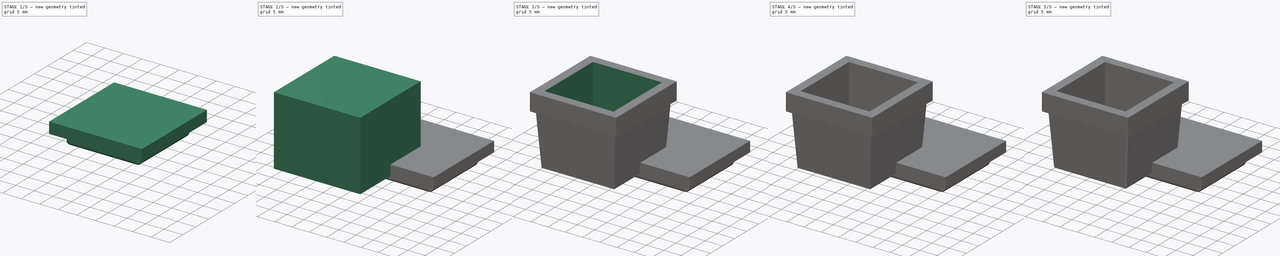
[diagram: build sequence overview — one tinted view per stage of 5, left to right]
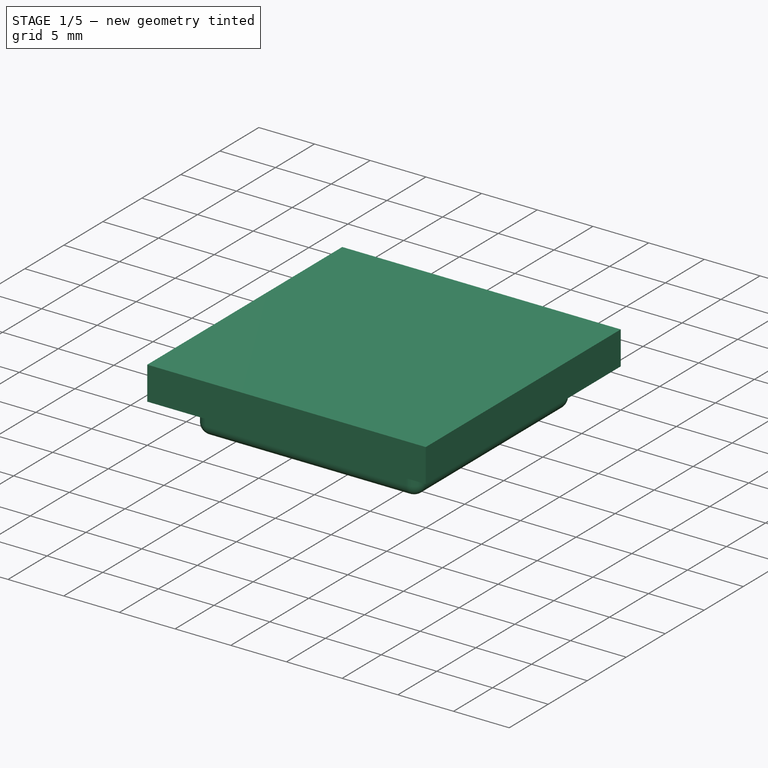
[diagram: stage 1 of 5 — iso view after this stage's code; geometry added in this stage tinted green]
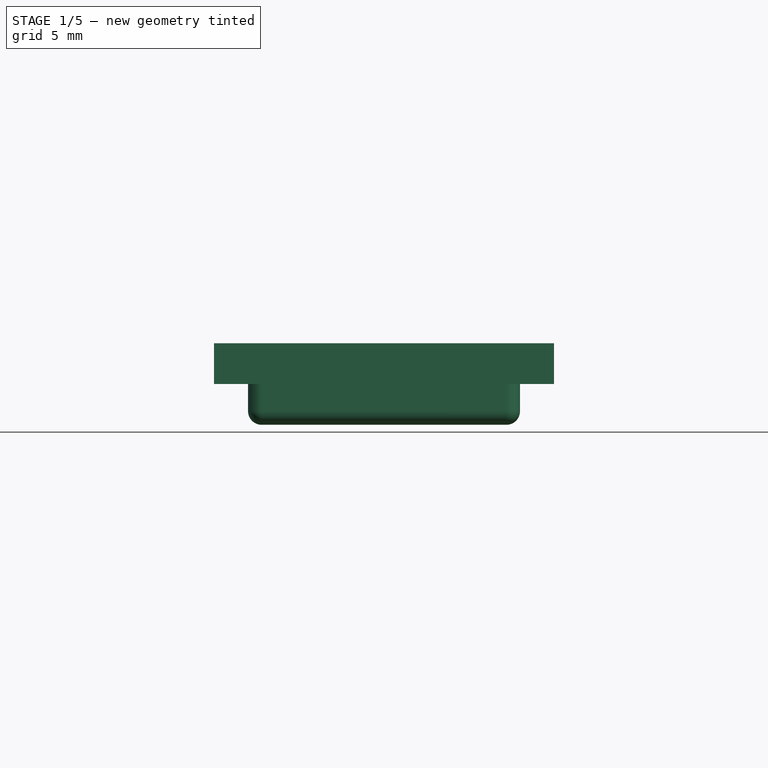
[diagram: stage 1 of 5 — front view after this stage's code; geometry added in this stage tinted green]
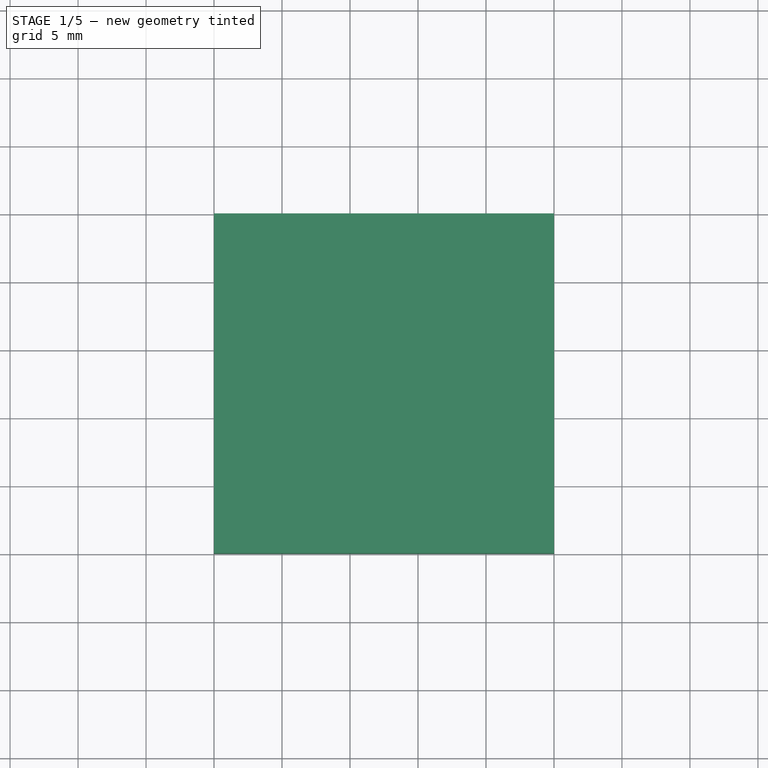
[diagram: stage 1 of 5 — top view after this stage's code; geometry added in this stage tinted green]
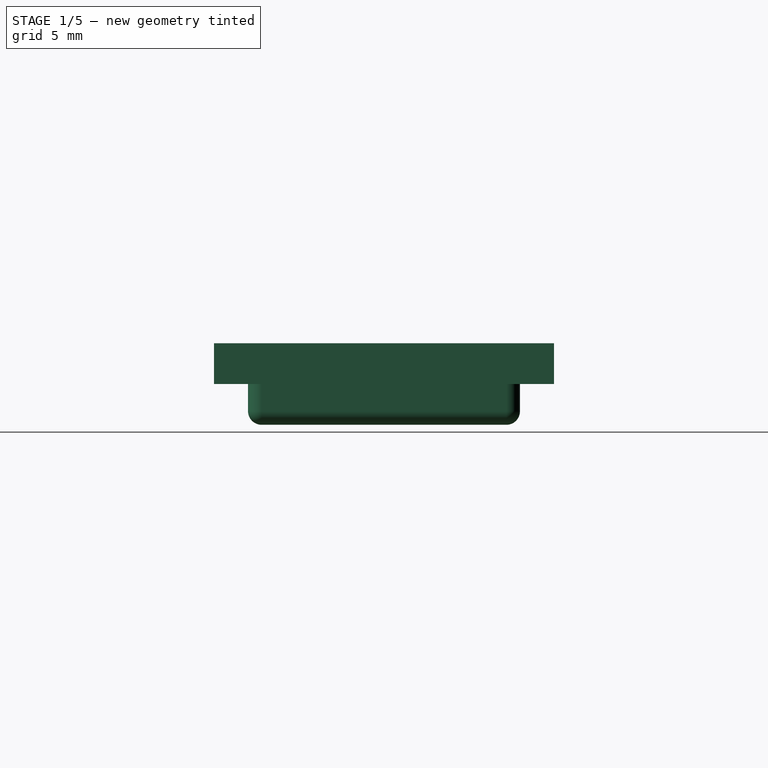
[diagram: stage 1 of 5 — right view after this stage's code; geometry added in this stage tinted green]
FCSTD DOCUMENT  (FreeCAD 1.0R39109 (Git))
Label: Receptacle_A1
License: All rights reserved
LicenseURL: http://en.wikipedia.org/wiki/All_rights_reserved
objects: PartDesign::AdditiveBox×5, Sketcher::SketchObject×4, PartDesign::Body×4, PartDesign::SubtractiveCylinder×4, Part::Feature×3, App::Part×3, PartDesign::Pad×2, Part::Chamfer×2, Part::Fillet×2, PartDesign::FeatureBase×2, PartDesign::SubtractiveLoft×1, PartDesign::Boolean×1, PartDesign::SubtractiveBox×1, Part::Box×1
note: 65 computed .brp shape members not serialized (recipe doc carries the construction recipe); baked Part::Feature solids carry a one-line shape summary decoded from their .brp

FEATURE [Part::Box] Box006
  AttacherType = Attacher::AttachEngine3D
  Height = 3
  Length = 25
  Placement = pos=(-12.5,-12.5,42) rot=(0,0,1;0rad)
  Width = 25
FEATURE [PartDesign::FeatureBase] BaseFeature
  BaseFeature = -> Box006
  Suppressed = false
FEATURE [PartDesign::AdditiveBox] Box007
  AttacherType = Attacher::AttachEngine3D
  AttachmentOffset = pos=(2.5,-22.5,0) rot=(0,0,1;0rad)
  AttachmentSupport = -> [BaseFeature]
  BaseFeature = -> BaseFeature
  Height = 3
  Length = 20
  MapMode = 5
  Placement = pos=(2.5,22.5,0) rot=(1,0,0;3.14159rad)
  Refine = true
  Suppressed = false
  Width = 20
FEATURE [PartDesign::Body] Body002
  AllowCompound = false
  BaseFeature = -> Box006
  Group = -> [BaseFeature,Box007]
  Origin = -> Origin002
  Placement = pos=(-12.5,-12.5,25) rot=(0,0,1;0rad)
  Tip = -> Box007
FEATURE [Part::Fillet] Fillet001
  Base = -> Box007
  EdgeLinks = -> Box007 [Edge17,Edge18,Edge19,Edge20,Edge21,Edge22,Edge23,Edge24]
  Edges = 8 edges r=1: [Edge17,Edge18,Edge19,Edge20,Edge21,Edge22,Edge23,Edge24]
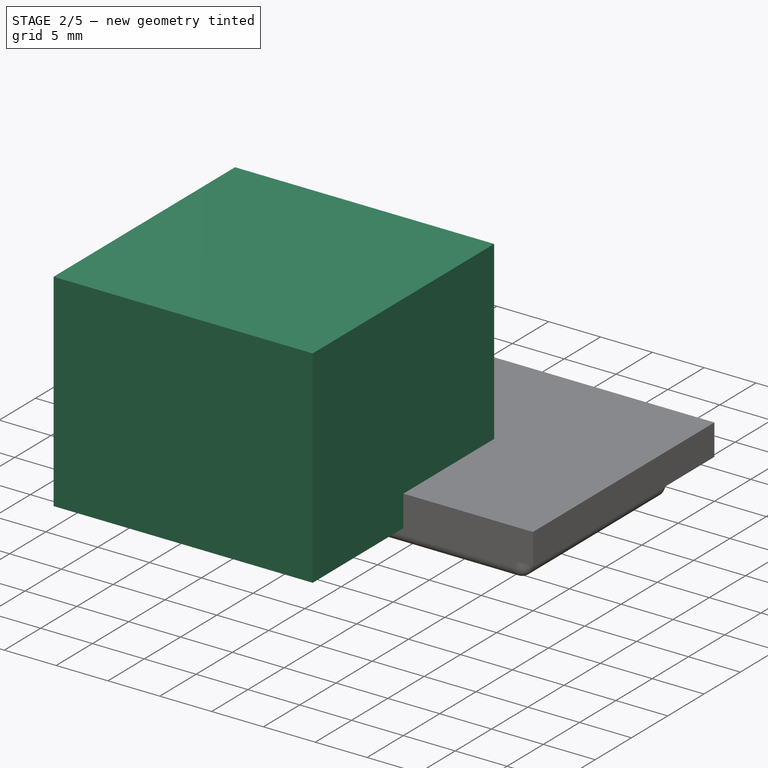
[diagram: stage 2 of 5 — iso view after this stage's code; geometry added in this stage tinted green]
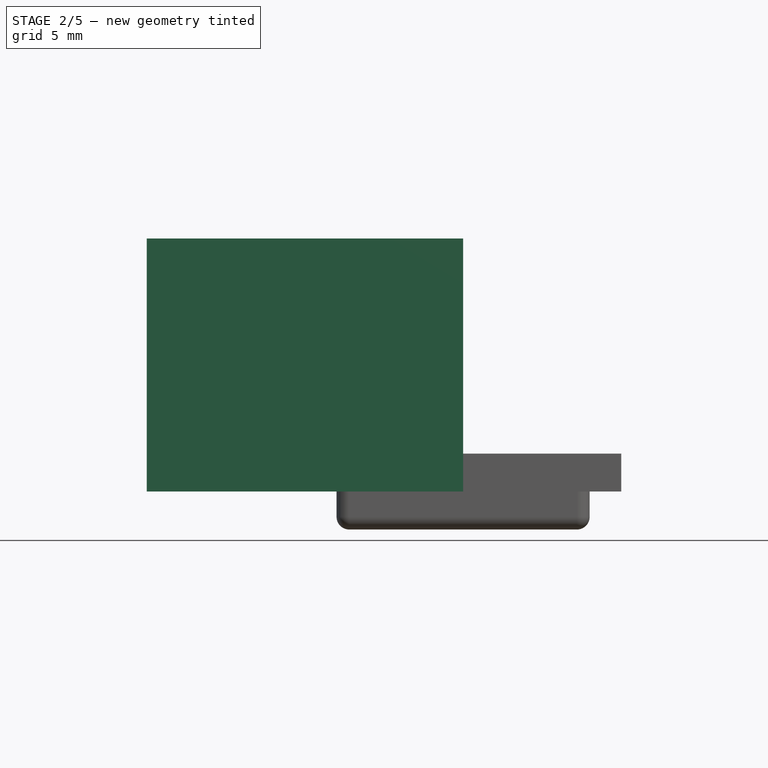
[diagram: stage 2 of 5 — front view after this stage's code; geometry added in this stage tinted green]
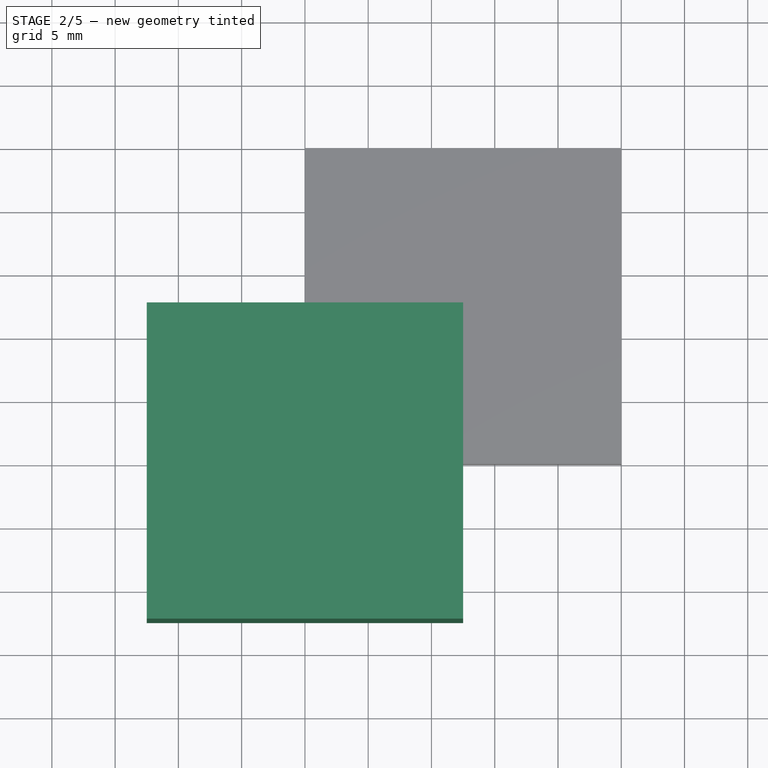
[diagram: stage 2 of 5 — top view after this stage's code; geometry added in this stage tinted green]
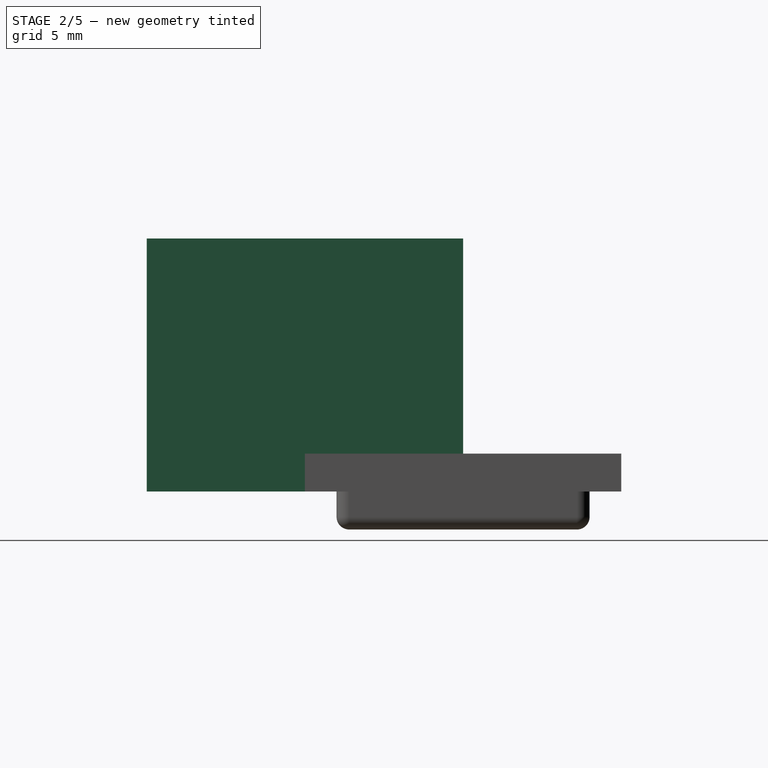
[diagram: stage 2 of 5 — right view after this stage's code; geometry added in this stage tinted green]
FEATURE [Sketcher::SketchObject] Sketch
  ArcFitTolerance = 1e-06
  AttachmentSupport = -> [XY_Plane]
  FullyConstrained = true
  MakeInternals = false
  MapMode = 5
  sketch-geometry (5):
    g0: LineSegment StartX=-12.5 StartY=-12.5 StartZ=0 EndX=12.5 EndY=-12.5 EndZ=0
    g1: LineSegment StartX=12.5 StartY=-12.5 StartZ=0 EndX=12.5 EndY=12.5 EndZ=0
    g2: LineSegment StartX=12.5 StartY=12.5 StartZ=0 EndX=-12.5 EndY=12.5 EndZ=0
    g3: LineSegment StartX=-12.5 StartY=12.5 StartZ=0 EndX=-12.5 EndY=-12.5 EndZ=0
    g4: GeomPoint [constr] X=0 Y=0 Z=0
  constraints (12):
    c: Coincident(g0,g1)
    c: Coincident(g1,g2)
    c: Coincident(g2,g3)
    c: Coincident(g3,g0)
    c: Horizontal(g0)
    c: Horizontal(g2)
    c: Vertical(g1)
    c: Vertical(g3)
    c: Symmetric(g2,g0,g4)
    c: Distance(g1,g3) = 25
    c: Distance(g0,g2) = 25
    c: Coincident(g4,g-1)
FEATURE [PartDesign::Pad] Pad
  Direction = (0,0,1)
  Length = 15
  Length2 = 10
  Profile = -> Sketch
  ReferenceAxis = -> Sketch [N_Axis]
  Refine = true
  Suppressed = false
  Type = 0
FEATURE [Sketcher::SketchObject] Sketch001
  ArcFitTolerance = 1e-06
  AttachmentSupport = -> [Pad]
  FullyConstrained = true
  MakeInternals = false
  MapMode = 5
  Placement = pos=(0,0,15) rot=(0,0,1;0rad)
  sketch-geometry (5):
    g0: LineSegment StartX=-11.5 StartY=-11.5 StartZ=0 EndX=11.5 EndY=-11.5 EndZ=0
    g1: LineSegment StartX=11.5 StartY=-11.5 StartZ=0 EndX=11.5 EndY=11.5 EndZ=0
    g2: LineSegment StartX=11.5 StartY=11.5 StartZ=0 EndX=-11.5 EndY=11.5 EndZ=0
    g3: LineSegment StartX=-11.5 StartY=11.5 StartZ=0 EndX=-11.5 EndY=-11.5 EndZ=0
    g4: GeomPoint [constr] X=0 Y=0 Z=0
  constraints (12):
    c: Coincident(g0,g1)
    c: Coincident(g1,g2)
    c: Coincident(g2,g3)
    c: Coincident(g3,g0)
    c: Horizontal(g0)
    c: Horizontal(g2)
    c: Vertical(g1)
    c: Vertical(g3)
    c: Symmetric(g2,g0,g4)
    c: Distance(g1,g3) = 23
    c: Distance(g0,g2) = 23
    c: Coincident(g4,g-1)
FEATURE [Sketcher::SketchObject] Sketch002
  ArcFitTolerance = 1e-06
  AttachmentSupport = -> [Pad]
  FullyConstrained = true
  MakeInternals = false
  MapMode = 5
  Placement = pos=(0,0,0) rot=(1,0,0;3.14159rad)
  sketch-geometry (5):
    g0: LineSegment StartX=-10.5 StartY=-10.5 StartZ=0 EndX=10.5 EndY=-10.5 EndZ=0
    g1: LineSegment StartX=10.5 StartY=-10.5 StartZ=0 EndX=10.5 EndY=10.5 EndZ=0
    g2: LineSegment StartX=10.5 StartY=10.5 StartZ=0 EndX=-10.5 EndY=10.5 EndZ=0
    g3: LineSegment StartX=-10.5 StartY=10.5 StartZ=0 EndX=-10.5 EndY=-10.5 EndZ=0
    g4: GeomPoint [constr] X=0 Y=0 Z=0
  constraints (12):
    c: Coincident(g0,g1)
    c: Coincident(g1,g2)
    c: Coincident(g2,g3)
    c: Coincident(g3,g0)
    c: Horizontal(g0)
    c: Horizontal(g2)
    c: Vertical(g1)
    c: Vertical(g3)
    c: Symmetric(g2,g0,g4)
    c: Distance(g1,g3) = 21
    c: Distance(g0,g2) = 21
    c: Coincident(g4,g-1)
FEATURE [PartDesign::SubtractiveLoft] SubtractiveLoft
  BaseFeature = -> Pad
  Closed = false
  Profile = -> Sketch002
  Refine = true
  Ruled = false
  Sections = -> [Sketch001]
  Suppressed = false
FEATURE [PartDesign::Body] Body
  AllowCompound = false
  Group = -> [Sketch,Pad,Sketch001,Sketch002,SubtractiveLoft]
  Origin = -> Origin
  Tip = -> SubtractiveLoft
FEATURE [Sketcher::SketchObject] Sketch004
  ArcFitTolerance = 1e-06
  AttachmentSupport = -> [XY_Plane002]
  FullyConstrained = true
  MakeInternals = false
  MapMode = 5
  sketch-geometry (5):
    g0: LineSegment StartX=-12.5 StartY=-12.5 StartZ=0 EndX=12.5 EndY=-12.5 EndZ=0
    g1: LineSegment StartX=12.5 StartY=-12.5 StartZ=0 EndX=12.5 EndY=12.5 EndZ=0
    g2: LineSegment StartX=12.5 StartY=12.5 StartZ=0 EndX=-12.5 EndY=12.5 EndZ=0
    g3: LineSegment StartX=-12.5 StartY=12.5 StartZ=0 EndX=-12.5 EndY=-12.5 EndZ=0
    g4: GeomPoint [constr] X=0 Y=0 Z=0
  constraints (12):
    c: Coincident(g0,g1)
    c: Coincident(g1,g2)
    c: Coincident(g2,g3)
    c: Coincident(g3,g0)
    c: Horizontal(g0)
    c: Horizontal(g2)
    c: Vertical(g1)
    c: Vertical(g3)
    c: Symmetric(g2,g0,g4)
    c: Distance(g1,g3) = 25
    c: Distance(g0,g2) = 25
    c: Coincident(g4,g-1)
FEATURE [PartDesign::Pad] Pad001
  Direction = (0,0,1)
  Length = 20
  Length2 = 10
  Profile = -> Sketch004
  ReferenceAxis = -> Sketch004 [N_Axis]
  Refine = true
  Suppressed = false
  Type = 0
FEATURE [PartDesign::FeatureBase] BaseFeature001
  BaseFeature = -> Fillet001
  Suppressed = false
FEATURE [PartDesign::Body] Body003
  AllowCompound = false
  BaseFeature = -> Fillet001
  Group = -> [BaseFeature001]
  Origin = -> Origin003
  Placement = pos=(0,0,25) rot=(0,0,1;0rad)
  Tip = -> BaseFeature001
FEATURE [Part::Feature] Part__Feature  label="PinHeader_1x03_P254mm_Vertical"
  shape: bbox 2.54 x 7.62 x 11.54 mm, 76 faces (baked)
FEATURE [App::Part] PinHeader_1x03_P2_54mm_Vertical  label="PinHeader_1x03_P2.54mm_Vertical"
  Group = -> [Part__Feature]
  Origin = -> Origin004
  Placement = pos=(133.76,-82.6,1.65) rot=(0,0,1;1.5708rad)
FEATURE [Part::Feature] Part__Feature001  label="PinHeader_1x03_P254mm_Vertical001"
  shape: bbox 2.54 x 7.62 x 11.54 mm, 76 faces (baked)
FEATURE [App::Part] PinHeader_1x03_P2_54mm_Vertical001  label="PinHeader_1x03_P2.54mm_Vertical001"
  Group = -> [Part__Feature001]
  Origin = -> Origin005
  Placement = pos=(133.46,-97.3,1.65) rot=(0,0,1;1.5708rad)
FEATURE [Part::Feature] Part__Feature002  label="protorack-A-Inductor_PCB"
  shape: bbox 19.48 x 19.47 x 1.6 mm, 23 faces (baked)
FEATURE [App::Part] protorack_A_empty_1  label="protorack-A-empty 1"
  Group = -> [PinHeader_1x03_P2_54mm_Vertical,PinHeader_1x03_P2_54mm_Vertical001,Part__Feature002]
  Origin = -> Origin006
  Placement = pos=(-136,90,6) rot=(0,0,1;0rad)
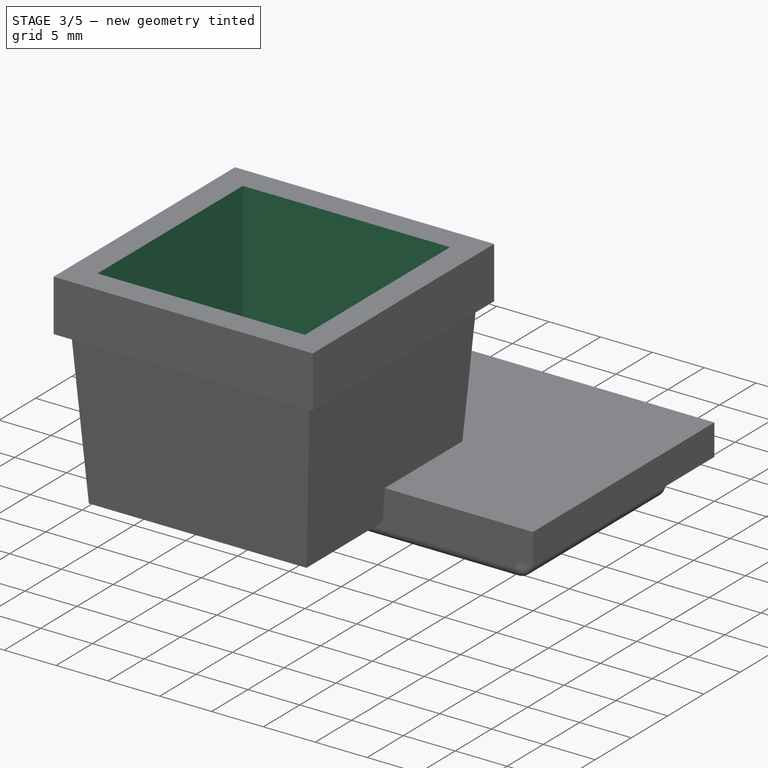
[diagram: stage 3 of 5 — iso view after this stage's code; geometry added in this stage tinted green]
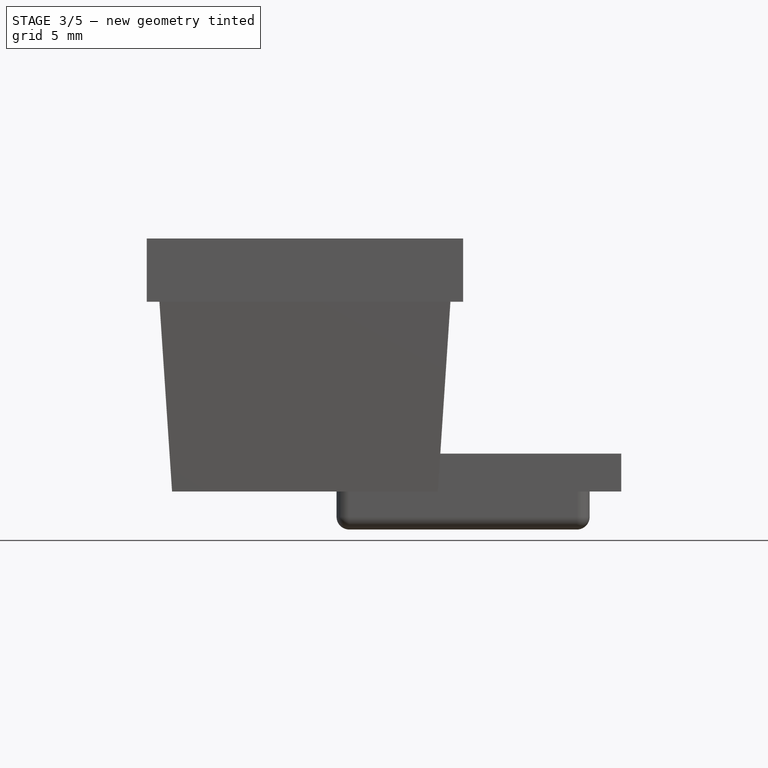
[diagram: stage 3 of 5 — front view after this stage's code; geometry added in this stage tinted green]
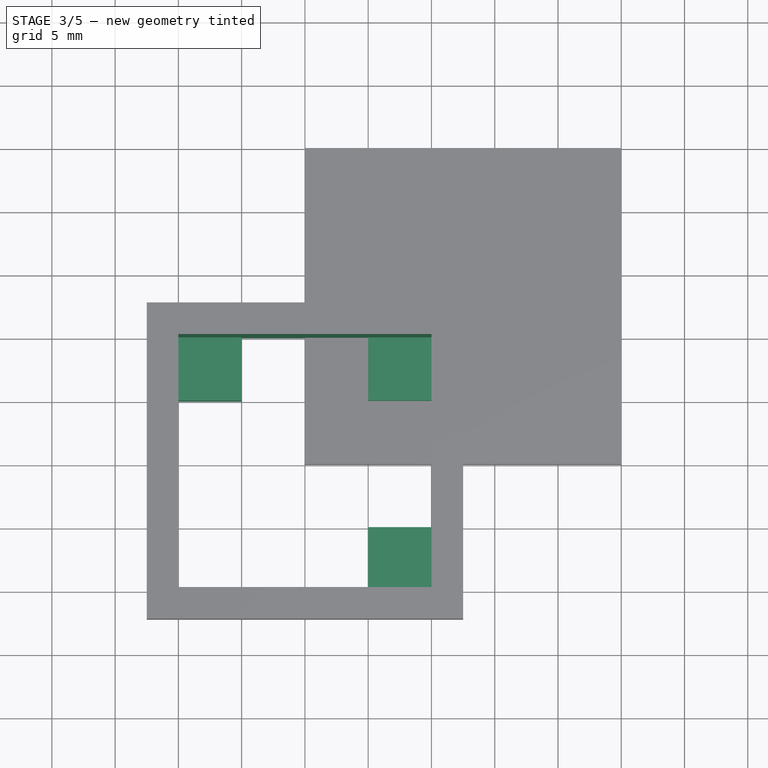
[diagram: stage 3 of 5 — top view after this stage's code; geometry added in this stage tinted green]
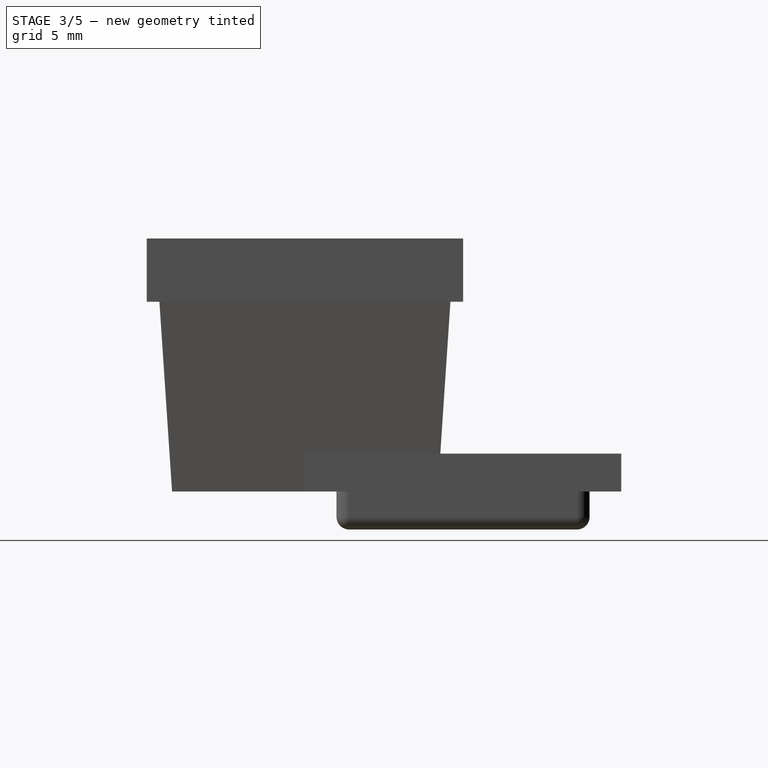
[diagram: stage 3 of 5 — right view after this stage's code; geometry added in this stage tinted green]
FEATURE [PartDesign::Boolean] Boolean
  BaseFeature = -> Pad001
  Group = -> [Body]
  Refine = true
  Suppressed = false
  Type = 1
  UsePlacement = true
FEATURE [PartDesign::SubtractiveBox] Box
  AttacherType = Attacher::AttachEngine3D
  AttachmentOffset = pos=(-10,-10,0) rot=(0,0,1;0rad)
  AttachmentSupport = -> [Boolean]
  BaseFeature = -> Boolean
  Height = 21
  Length = 20
  MapMode = 2
  Placement = pos=(-10,-10,0) rot=(0,0,1;0rad)
  Refine = true
  Suppressed = false
  Width = 20
FEATURE [PartDesign::AdditiveBox] Box001
  AttacherType = Attacher::AttachEngine3D
  AttachmentSupport = -> [Box]
  BaseFeature = -> Box
  Height = 5
  Length = 5
  MapMode = 5
  Placement = pos=(-10,10,0) rot=(1,0,0;1.5708rad)
  Refine = true
  Suppressed = false
  Width = 5
FEATURE [PartDesign::AdditiveBox] Box002
  AttacherType = Attacher::AttachEngine3D
  AttachmentOffset = pos=(-5,0,0) rot=(0,0,1;0rad)
  AttachmentSupport = -> [Box001]
  BaseFeature = -> Box001
  Height = 5
  Length = 5
  MapMode = 5
  Placement = pos=(10,10,5) rot=(0.707107,0,-0.707107;3.14159rad)
  Refine = true
  Suppressed = false
  Width = 5
FEATURE [PartDesign::AdditiveBox] Box003
  AttacherType = Attacher::AttachEngine3D
  AttachmentSupport = -> [Box002]
  BaseFeature = -> Box002
  Height = 5
  Length = 5
  MapMode = 5
  Placement = pos=(10,-10,5) rot=(0.57735,-0.57735,-0.57735;4.18879rad)
  Refine = true
  Suppressed = false
  Width = 5
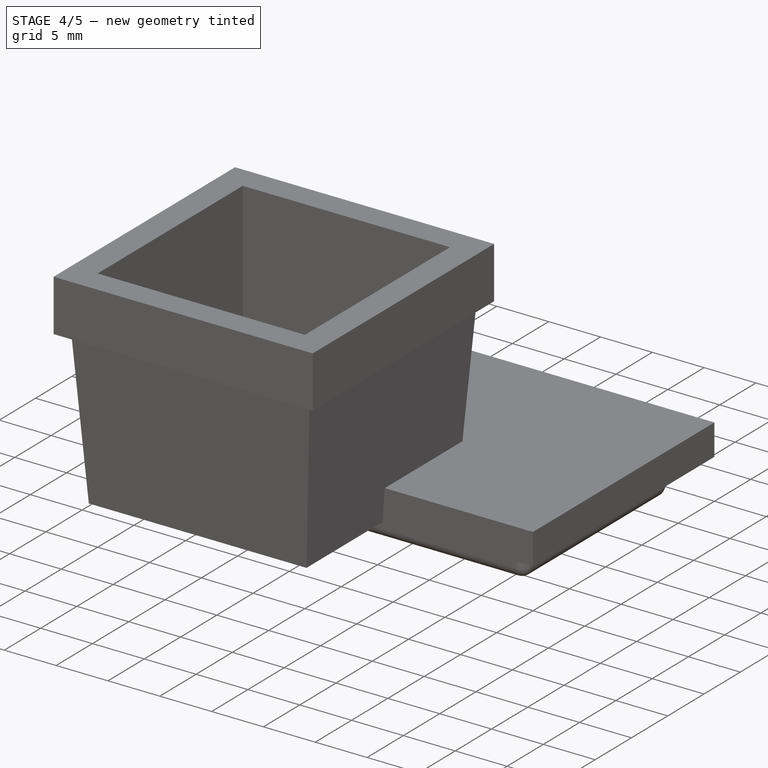
[diagram: stage 4 of 5 — iso view after this stage's code; geometry added in this stage tinted green]
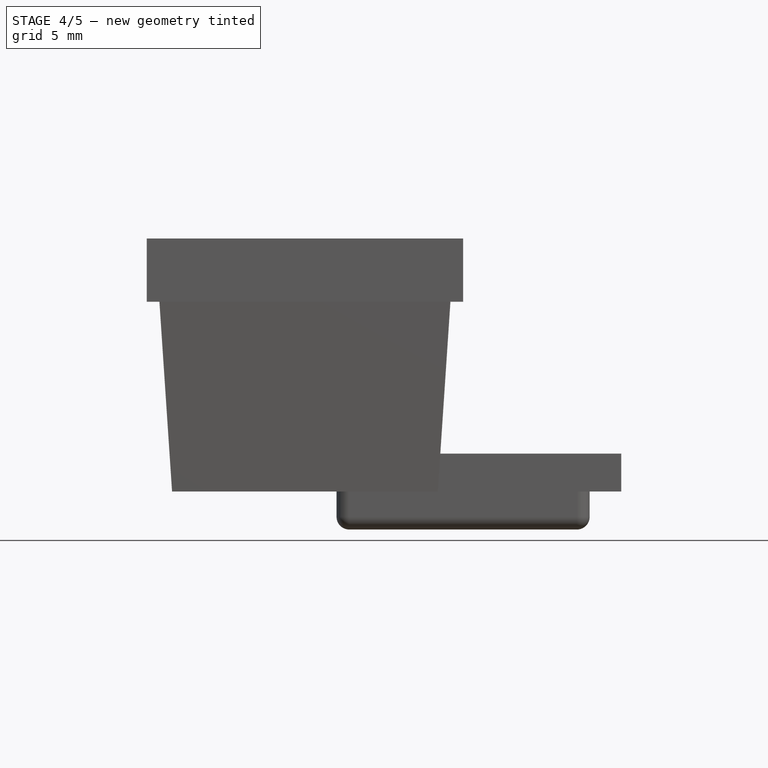
[diagram: stage 4 of 5 — front view after this stage's code; geometry added in this stage tinted green]
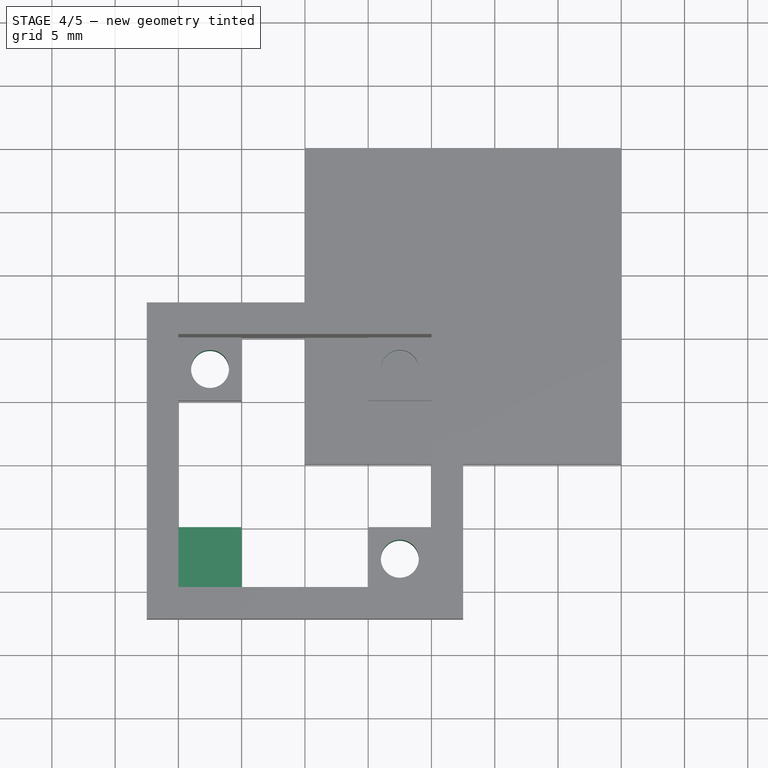
[diagram: stage 4 of 5 — top view after this stage's code; geometry added in this stage tinted green]
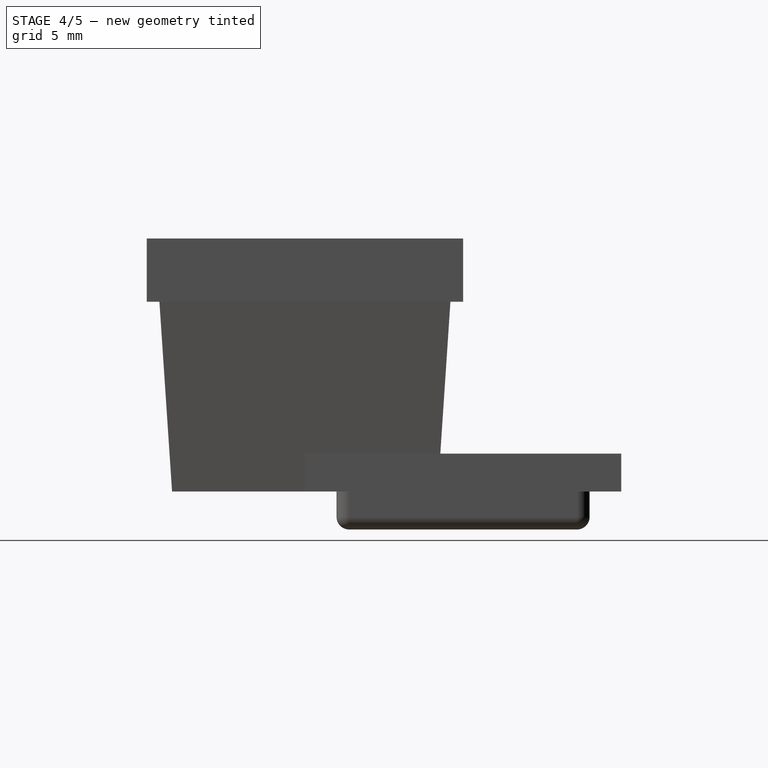
[diagram: stage 4 of 5 — right view after this stage's code; geometry added in this stage tinted green]
FEATURE [PartDesign::AdditiveBox] Box004
  AttacherType = Attacher::AttachEngine3D
  AttachmentSupport = -> [Box003]
  BaseFeature = -> Box003
  Height = 5
  Length = 5
  MapMode = 5
  Placement = pos=(-10,-10,5) rot=(0,1,0;1.5708rad)
  Refine = true
  Suppressed = false
  Width = 5
FEATURE [PartDesign::SubtractiveCylinder] Cylinder
  Angle = 360
  AttacherType = Attacher::AttachEngine3D
  AttachmentOffset = pos=(-17.5,2.5,-6.5) rot=(0,0,1;0rad)
  AttachmentSupport = -> [Box004]
  BaseFeature = -> Box004
  FirstAngle = 0
  Height = 10
  MapMode = 5
  Placement = pos=(-7.5,7.5,-1.5) rot=(0,0,-1;1.5708rad)
  Radius = 1.5
  Refine = true
  SecondAngle = 0
  Suppressed = false
FEATURE [PartDesign::SubtractiveCylinder] Cylinder001
  Angle = 360
  AttacherType = Attacher::AttachEngine3D
  AttachmentOffset = pos=(0,15,-8) rot=(0,0,1;0rad)
  AttachmentSupport = -> [Cylinder]
  BaseFeature = -> Cylinder
  FirstAngle = 0
  Height = 10
  MapMode = 5
  Placement = pos=(7.5,7.5,-3) rot=(0,0,-1;1.5708rad)
  Radius = 1.5
  Refine = true
  SecondAngle = 0
  Suppressed = false
FEATURE [PartDesign::SubtractiveCylinder] Cylinder002
  Angle = 360
  AttacherType = Attacher::AttachEngine3D
  AttachmentOffset = pos=(15,0,-9) rot=(0,0,1;0rad)
  AttachmentSupport = -> [Cylinder001]
  BaseFeature = -> Cylinder001
  FirstAngle = 0
  Height = 10
  MapMode = 5
  Placement = pos=(7.5,-7.5,-4) rot=(0,0,-1;1.5708rad)
  Radius = 1.5
  Refine = true
  SecondAngle = 0
  Suppressed = false
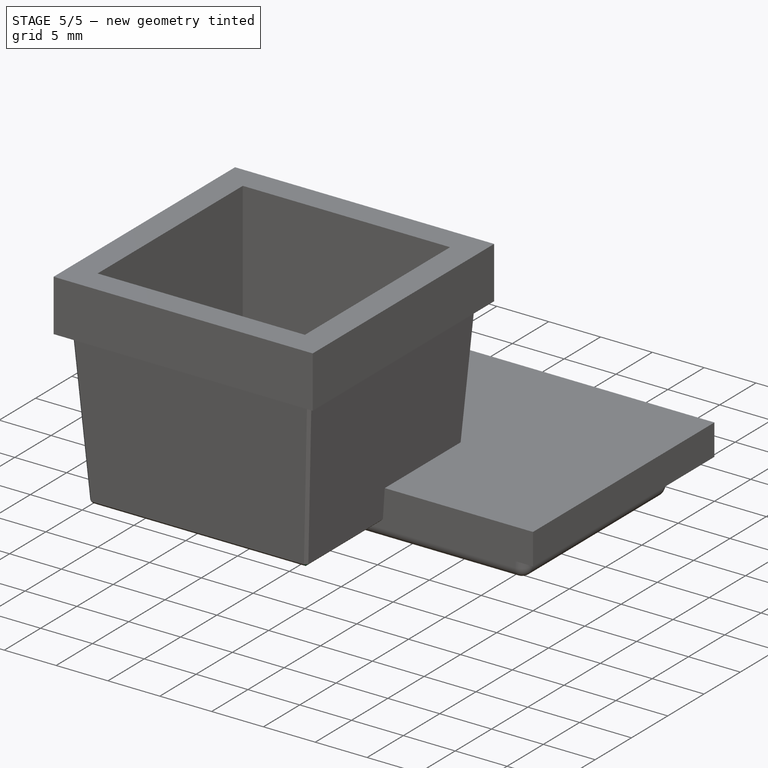
[diagram: stage 5 of 5 — iso view after this stage's code; geometry added in this stage tinted green]
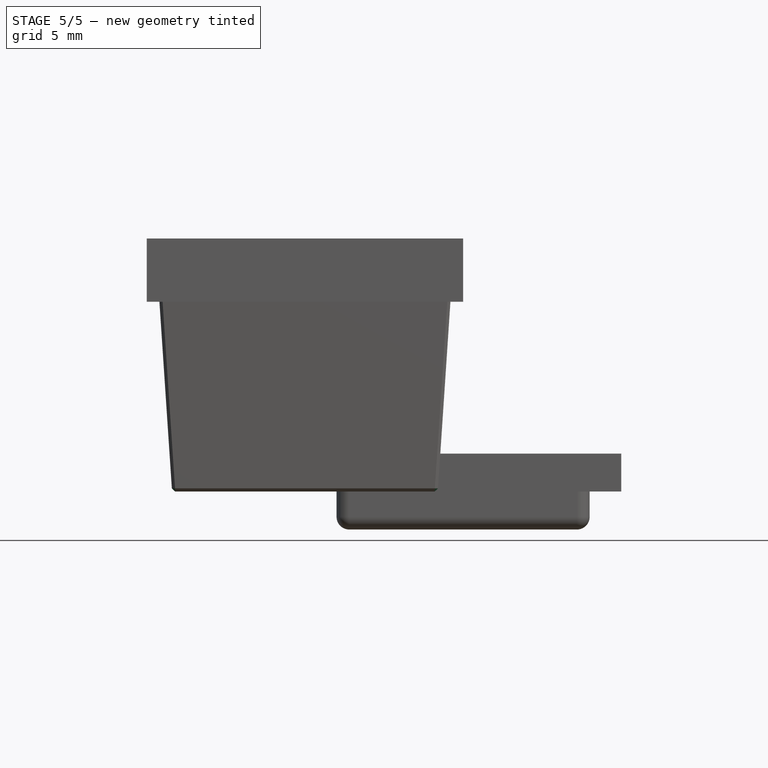
[diagram: stage 5 of 5 — front view after this stage's code; geometry added in this stage tinted green]
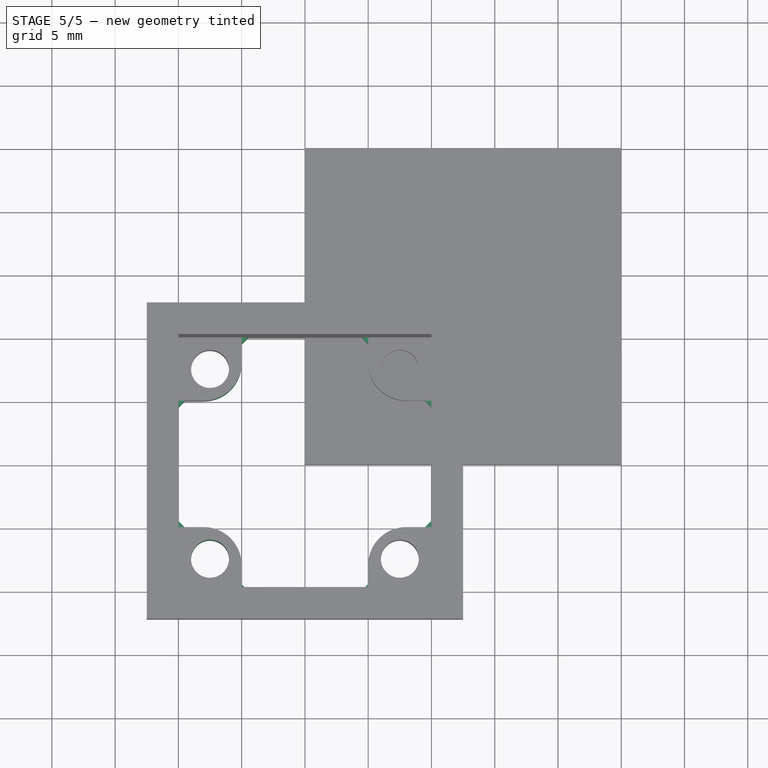
[diagram: stage 5 of 5 — top view after this stage's code; geometry added in this stage tinted green]
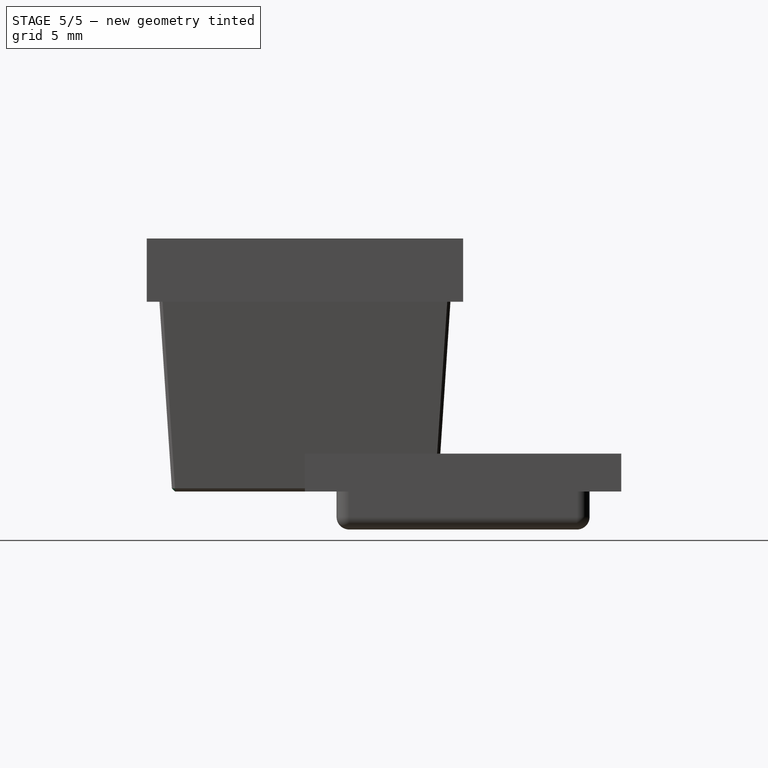
[diagram: stage 5 of 5 — right view after this stage's code; geometry added in this stage tinted green]
FEATURE [PartDesign::SubtractiveCylinder] Cylinder003
  Angle = 360
  AttacherType = Attacher::AttachEngine3D
  AttachmentOffset = pos=(0,-15,-13) rot=(0,0,1;0rad)
  AttachmentSupport = -> [Cylinder002]
  BaseFeature = -> Cylinder002
  FirstAngle = 0
  Height = 13
  MapMode = 5
  Placement = pos=(-7.5,-7.5,-8) rot=(0,0,-1;1.5708rad)
  Radius = 1.5
  Refine = true
  SecondAngle = 0
  Suppressed = false
FEATURE [PartDesign::Body] Body001
  AllowCompound = false
  Group = -> [Sketch004,Pad001,Boolean,Box,Box001,Box002,Box003,Box004,Cylinder,Cylinder001,Cylinder002,Cylinder003]
  Origin = -> Origin001
  Tip = -> Cylinder003
FEATURE [Part::Chamfer] Chamfer
  Base = -> Cylinder003
  EdgeLinks = -> Cylinder003 [Edge21,Edge22,Edge23,Edge24,Edge25,Edge26,Edge27,Edge28]
  Edges = 8 edges r=0.25: [Edge21,Edge22,Edge23,Edge24,Edge25,Edge26,Edge27,Edge28]
FEATURE [Part::Fillet] Fillet
  Base = -> Chamfer
  EdgeLinks = -> Chamfer [Edge96,Edge97,Edge102,Edge103]
  Edges = 4 edges r=3: [Edge96,Edge97,Edge102,Edge103]
FEATURE [Part::Chamfer] Chamfer001
  Base = -> Fillet
  EdgeLinks = -> Fillet [Edge27,Edge30,Edge36,Edge43,Edge50,Edge56,Edge58,Edge62]
  Edges = 8 edges r=0.5: [Edge27,Edge30,Edge36,Edge43,Edge50,Edge56,Edge58,Edge62]
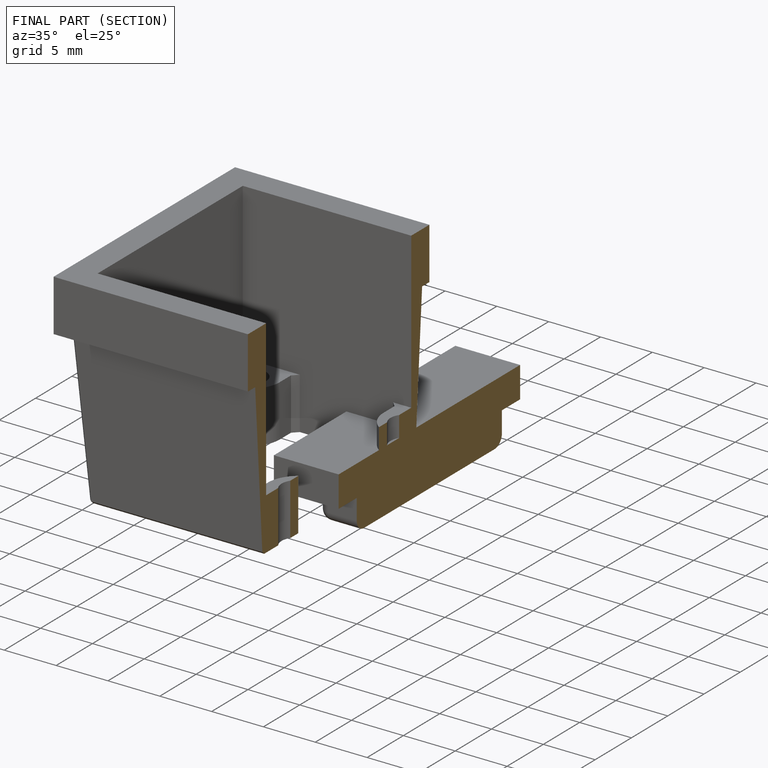
[diagram: finished part — half-section view (interior)]
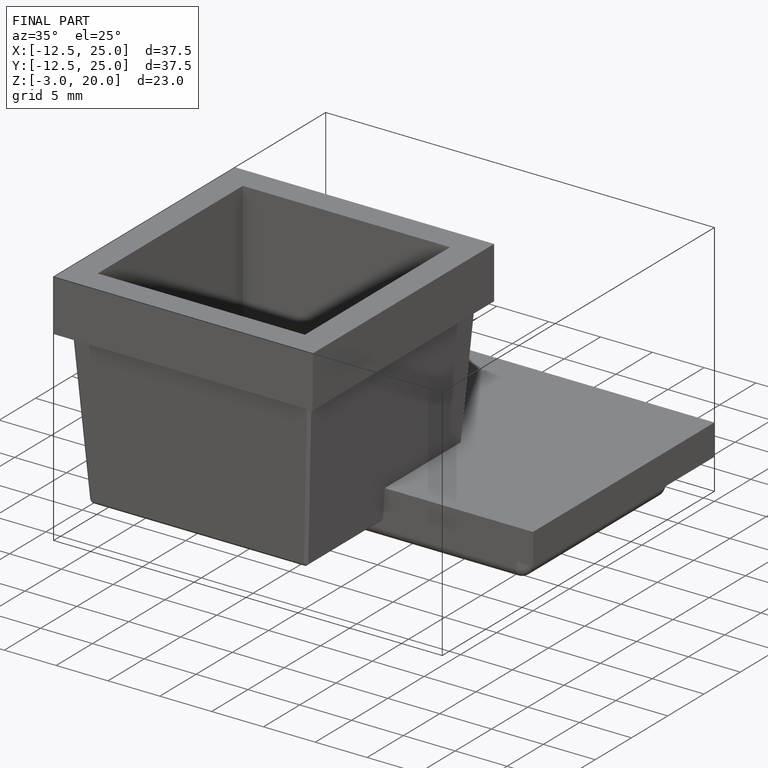
[diagram: finished part — iso view with bounding-box wireframe]
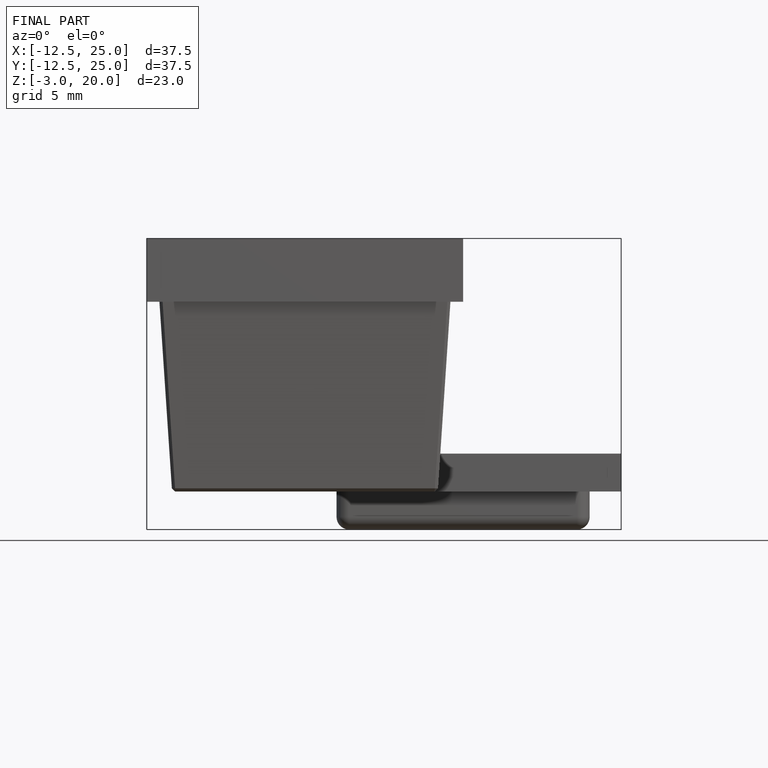
[diagram: finished part — front view with bounding-box wireframe]
